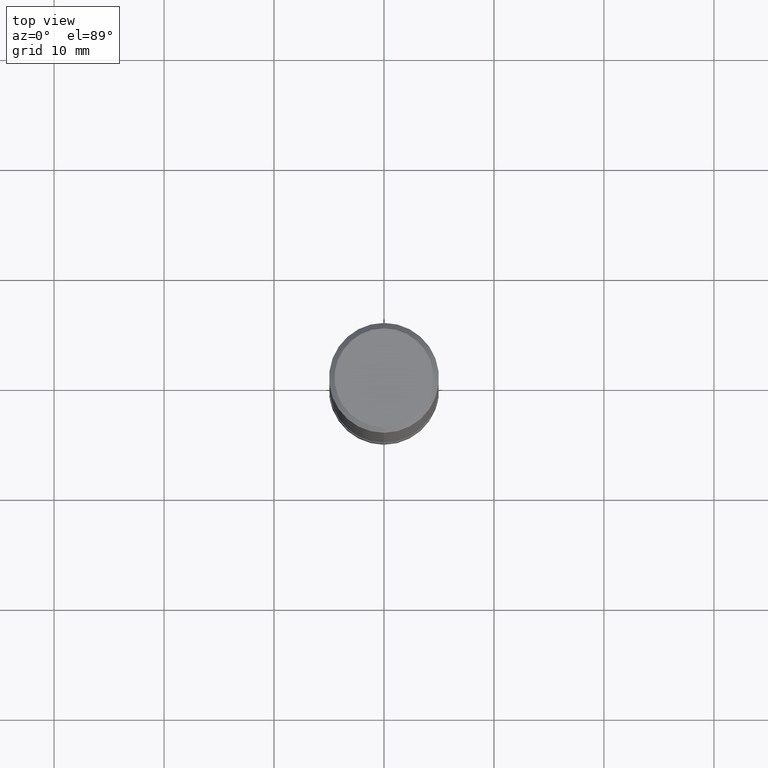
[diagram: clean part render]
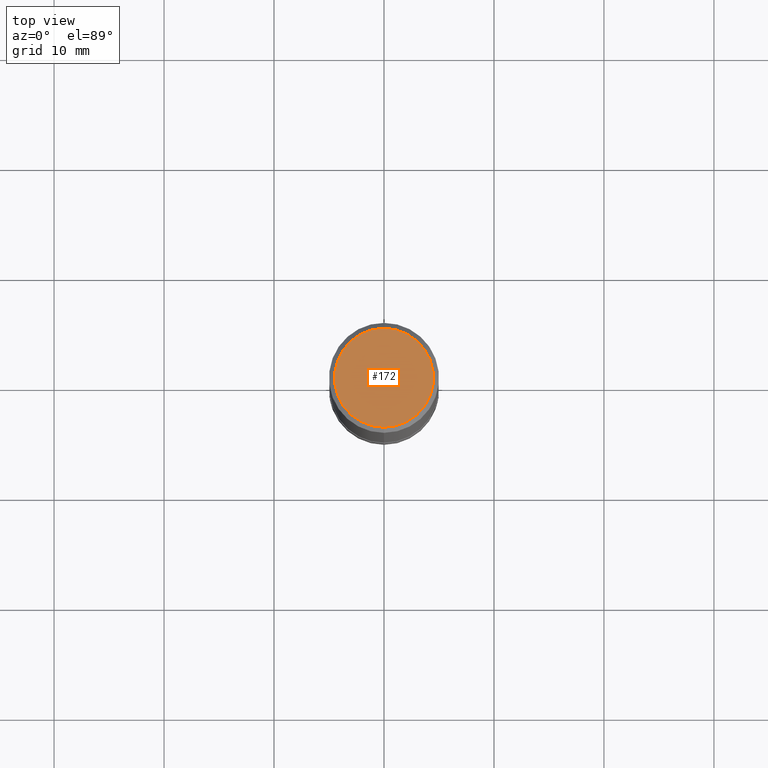
[diagram: same view with one face highlighted and labeled with its STEP entity id]
A machine part, top view. The second image highlights one B-rep face of the part: STEP entity #172.
In plain terms, the highlighted planar face has unit normal (-0, 0, 1).
Its self-contained STEP definition (entity closure, byte-faithful):
#144=VERTEX_POINT('',#290);
#156=VERTEX_POINT('',#302);
#158=EDGE_CURVE('',#144,#156,#304,.T.);
#172=ADVANCED_FACE('',(#318),#319,.T.);
#196=EDGE_CURVE('',#156,#144,#348,.T.);
#290=CARTESIAN_POINT('',(5.5107285922007E-016,-4.5,0.0));
#302=CARTESIAN_POINT('',(0.0,4.5,0.0));
#304=CIRCLE('',#465,4.5);
#318=FACE_OUTER_BOUND('',#485,.T.);
#319=PLANE('',#486);
#348=CIRCLE('',#521,4.5);
#465=AXIS2_PLACEMENT_3D('',#639,#640,#641);
#485=EDGE_LOOP('',(#656,#657));
#486=AXIS2_PLACEMENT_3D('',#658,#659,#660);
#521=AXIS2_PLACEMENT_3D('',#698,#699,#700);
#639=CARTESIAN_POINT('',(0.0,0.0,0.0));
#640=DIRECTION('',(0.0,0.0,-1.0));
#641=DIRECTION('',(0.0,1.0,0.0));
#656=ORIENTED_EDGE('',*,*,#196,.F.);
#657=ORIENTED_EDGE('',*,*,#158,.F.);
#658=CARTESIAN_POINT('',(0.0,2.25,0.0));
#659=DIRECTION('',(-0.0,0.0,1.0));
#660=DIRECTION('',(0.0,-1.0,0.0));
#698=CARTESIAN_POINT('',(0.0,0.0,0.0));
#699=DIRECTION('',(0.0,0.0,-1.0));
#700=DIRECTION('',(0.0,1.0,0.0));